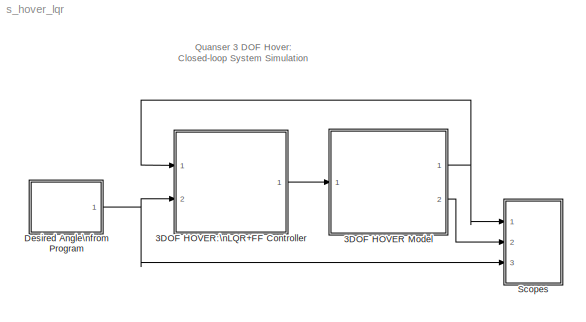
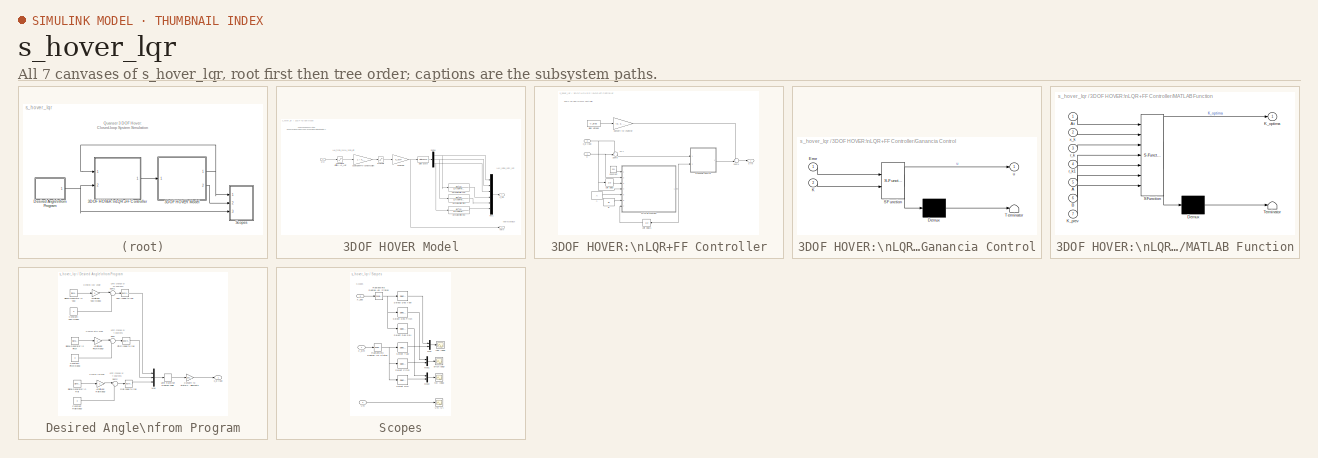
[diagram: thumbnail index - all 7 canvases of the model, root first then tree order]
MODEL s_hover_lqr
KIND model
BLOCK [SubSystem] 3DOF HOVER Model
  FunctionWithSeparateData = off
  MaskHideContents = off
  MinAlgLoopOccurrences = off
  Opaque = off
  Ports = [1, 2]
  PropExecContextOutsideSubsystem = off
  RTWSystemCode = Auto
  RequestExecContextInheritance = off
  SID = 1
BLOCK [Gain] 3DOF HOVER Model/Cable Gain
  Gain = K_AMP
  Multiplication = Matrix(K*u)
  SID = 3
BLOCK [Gain] 3DOF HOVER Model/Cable Gain\nPre-Compensation
  Gain = 1 / K_AMP
  Multiplication = Matrix(K*u)
  SID = 4
BLOCK [Saturate] 3DOF HOVER Model/DACB Limit
  InputPortMap = u0
  LowerLimit = -VMAX_DAC
  Ports = [1, 1]
  SID = 5
  UpperLimit = VMAX_DAC
BLOCK [Demux] 3DOF HOVER Model/Demux
  DisplayOption = bar
  Outputs = 3
  Ports = [1, 3]
  SID = 6
BLOCK [TransferFcn] 3DOF HOVER Model/Derivative Filter: Pitch
  Denominator = [1 2*zetaf*wcf wcf^2]
  Numerator = [wcf^2 0]
  SID = 7
BLOCK [TransferFcn] 3DOF HOVER Model/Derivative Filter: Roll
  Denominator = [1 2*zetaf*wcf wcf^2]
  Numerator = [wcf^2 0]
  SID = 8
BLOCK [TransferFcn] 3DOF HOVER Model/Derivative Filter: Yaw
  Denominator = [1 2*zetaf*wcf wcf^2]
  Numerator = [wcf^2 0]
  SID = 9
BLOCK [Mux] 3DOF HOVER Model/Mux1
  DisplayOption = bar
  Inputs = 6
  Ports = [6, 1]
  SID = 10
BLOCK [StateSpace] 3DOF HOVER Model/State-Space
  A = A
  B = B
  C = C
  D = D
  SID = 11
BLOCK [Saturate] 3DOF HOVER Model/UPM Voltage Limit:\n0 to VMAX_AMP
  InputPortMap = u0
  LowerLimit = 0
  Ports = [1, 1]
  SID = 12
  UpperLimit = VMAX_AMP
BLOCK [Outport] 3DOF HOVER Model/Vm (V)
  IconDisplay = Port number
  Port = 2
  SID = 14
BLOCK [Outport] 3DOF HOVER Model/X_sim
  IconDisplay = Port number
  SID = 13
BLOCK [Inport] 3DOF HOVER Model/u (V)
  IconDisplay = Port number
  SID = 2
BLOCK [SubSystem] 3DOF HOVER:\nLQR+FF Controller
  FunctionWithSeparateData = off
  MaskHideContents = off
  MinAlgLoopOccurrences = off
  Opaque = off
  Ports = [2, 1]
  PropExecContextOutsideSubsystem = off
  RTWSystemCode = Auto
  RequestExecContextInheritance = off
  SID = 19
BLOCK [Constant] 3DOF HOVER:\nLQR+FF Controller/A
  SID = 82
  Value = A
BLOCK [Constant] 3DOF HOVER:\nLQR+FF Controller/B
  SID = 83
  Value = B
BLOCK [Constant] 3DOF HOVER:\nLQR+FF Controller/Bias Voltage
  SID = 22
  Value = V_bias
BLOCK [Constant] 3DOF HOVER:\nLQR+FF Controller/Constant
  SID = 86
  Value = 0.01
BLOCK [Gain] 3DOF HOVER:\nLQR+FF Controller/Convert to \nVector
  Gain = [1; 1; 1; 1]
  Multiplication = Matrix(K*u)
  OutDataTypeStr = Inherit: Inherit via internal rule
  ParamDataTypeStr = Inherit: Inherit via internal rule
  SID = 24
  SaturateOnIntegerOverflow = off
BLOCK [SubSystem] 3DOF HOVER:\nLQR+FF Controller/Ganancia Control
  ErrorFcn = Stateflow.Translate.translate
  FunctionWithSeparateData = off
  MaskHideContents = off
  MinAlgLoopOccurrences = off
  Opaque = off
  PermitHierarchicalResolution = ExplicitOnly
  Ports = [2, 1]
  PropExecContextOutsideSubsystem = off
  RTWSystemCode = Auto
  RequestExecContextInheritance = off
  SFBlockType = MATLAB Function
  SID = 87
  TreatAsAtomicUnit = on
BLOCK [Demux] 3DOF HOVER:\nLQR+FF Controller/Ganancia Control/ Demux 
  Outputs = 1
  Ports = [1, 1]
  SID = 87::20
BLOCK [S-Function] 3DOF HOVER:\nLQR+FF Controller/Ganancia Control/ SFunction 
  EnableBusSupport = on
  FunctionName = sf_sfun
  PortCounts = [2 2]
  Ports = [2, 2]
  SID = 87::19
  Tag = Stateflow S-Function s_hover_lqr 1
BLOCK [Terminator] 3DOF HOVER:\nLQR+FF Controller/Ganancia Control/ Terminator 
  SID = 87::22
BLOCK [Inport] 3DOF HOVER:\nLQR+FF Controller/Ganancia Control/Error
  IconDisplay = Port number
  SID = 87::23
BLOCK [Inport] 3DOF HOVER:\nLQR+FF Controller/Ganancia Control/K
  IconDisplay = Port number
  Port = 2
  SID = 87::24
BLOCK [Outport] 3DOF HOVER:\nLQR+FF Controller/Ganancia Control/u
  IconDisplay = Port number
  SID = 87::25
BLOCK [SubSystem] 3DOF HOVER:\nLQR+FF Controller/MATLAB Function
  ErrorFcn = Stateflow.Translate.translate
  FunctionWithSeparateData = off
  MaskHideContents = off
  MinAlgLoopOccurrences = off
  Opaque = off
  PermitHierarchicalResolution = ExplicitOnly
  Ports = [7, 1]
  PropExecContextOutsideSubsystem = off
  RTWSystemCode = Auto
  RequestExecContextInheritance = off
  SFBlockType = MATLAB Function
  SID = 79
  TreatAsAtomicUnit = on
BLOCK [Demux] 3DOF HOVER:\nLQR+FF Controller/MATLAB Function/ Demux 
  Outputs = 1
  Ports = [1, 1]
  SID = 79::20
BLOCK [S-Function] 3DOF HOVER:\nLQR+FF Controller/MATLAB Function/ SFunction 
  EnableBusSupport = on
  FunctionName = sf_sfun
  PortCounts = [7 2]
  Ports = [7, 2]
  SID = 79::19
  Tag = Stateflow S-Function s_hover_lqr 2
BLOCK [Terminator] 3DOF HOVER:\nLQR+FF Controller/MATLAB Function/ Terminator 
  SID = 79::22
BLOCK [Inport] 3DOF HOVER:\nLQR+FF Controller/MATLAB Function/A
  IconDisplay = Port number
  Port = 5
  SID = 79::26
BLOCK [Inport] 3DOF HOVER:\nLQR+FF Controller/MATLAB Function/At
  IconDisplay = Port number
  SID = 79::1
BLOCK [Inport] 3DOF HOVER:\nLQR+FF Controller/MATLAB Function/B
  IconDisplay = Port number
  Port = 6
  SID = 79::27
BLOCK [Outport] 3DOF HOVER:\nLQR+FF Controller/MATLAB Function/K_optima
  IconDisplay = Port number
  SID = 79::31
BLOCK [Inport] 3DOF HOVER:\nLQR+FF Controller/MATLAB Function/K_prev
  IconDisplay = Port number
  Port = 7
  SID = 79::29
BLOCK [Inport] 3DOF HOVER:\nLQR+FF Controller/MATLAB Function/r_k
  IconDisplay = Port number
  Port = 3
  SID = 79::24
BLOCK [Inport] 3DOF HOVER:\nLQR+FF Controller/MATLAB Function/r_k1
  IconDisplay = Port number
  Port = 4
  SID = 79::25
BLOCK [Inport] 3DOF HOVER:\nLQR+FF Controller/MATLAB Function/x_k
  IconDisplay = Port number
  Port = 2
  SID = 79::23
BLOCK [Sum] 3DOF HOVER:\nLQR+FF Controller/Sum4
  IconShape = round
  InputSameDT = off
  Inputs = ++|
  OutDataTypeStr = Inherit: Inherit via internal rule
  Ports = [2, 1]
  SID = 25
  SaturateOnIntegerOverflow = off
BLOCK [Sum] 3DOF HOVER:\nLQR+FF Controller/Sum5
  IconShape = round
  InputSameDT = off
  Inputs = +-|
  OutDataTypeStr = Inherit: Inherit via internal rule
  Ports = [2, 1]
  SID = 26
  SaturateOnIntegerOverflow = off
BLOCK [UnitDelay] 3DOF HOVER:\nLQR+FF Controller/Unit Delay
  InitialCondition = [0;0;0;0;0;0]
  InputProcessing = Elements as channels (sample based)
  SID = 81
  SampleTime = -1
BLOCK [UnitDelay] 3DOF HOVER:\nLQR+FF Controller/Unit Delay1
  InitialCondition = K
  InputProcessing = Elements as channels (sample based)
  SID = 84
  SampleTime = -1
BLOCK [Inport] 3DOF HOVER:\nLQR+FF Controller/X
  IconDisplay = Port number
  SID = 20
BLOCK [Inport] 3DOF HOVER:\nLQR+FF Controller/X_d (rad)
  IconDisplay = Port number
  Port = 2
  SID = 21
BLOCK [Outport] 3DOF HOVER:\nLQR+FF Controller/u (V)
  IconDisplay = Port number
  SID = 27
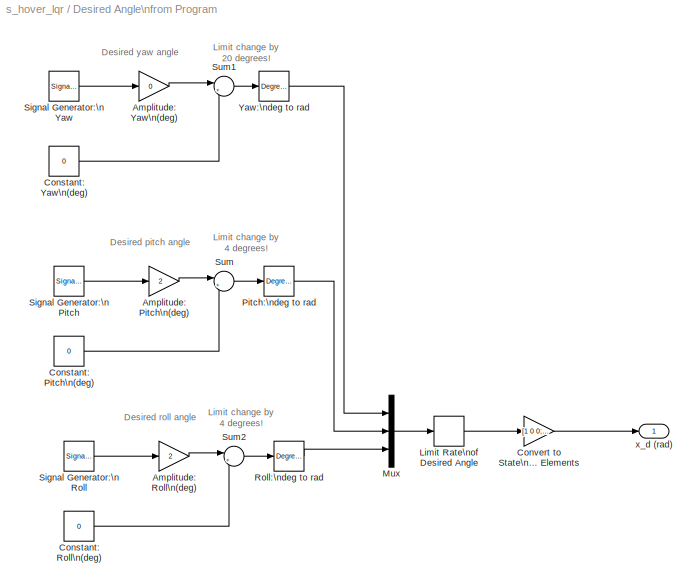
BLOCK [SubSystem] Desired Angle\nfrom Program
  FunctionWithSeparateData = off
  MaskHideContents = off
  MinAlgLoopOccurrences = off
  Opaque = off
  Ports = [0, 1]
  PropExecContextOutsideSubsystem = off
  RTWSystemCode = Auto
  RequestExecContextInheritance = off
  SID = 30
BLOCK [Gain] Desired Angle\nfrom Program/Amplitude: Pitch\n(deg)
  Gain = 2
  OutDataTypeStr = Inherit: Inherit via internal rule
  ParamDataTypeStr = Inherit: Inherit via internal rule
  SID = 31
  SaturateOnIntegerOverflow = off
BLOCK [Gain] Desired Angle\nfrom Program/Amplitude: Roll\n(deg)
  Gain = 2
  OutDataTypeStr = Inherit: Inherit via internal rule
  ParamDataTypeStr = Inherit: Inherit via internal rule
  SID = 32
  SaturateOnIntegerOverflow = off
BLOCK [Gain] Desired Angle\nfrom Program/Amplitude: Yaw\n(deg)
  Gain = 0
  OutDataTypeStr = Inherit: Inherit via internal rule
  ParamDataTypeStr = Inherit: Inherit via internal rule
  SID = 33
  SaturateOnIntegerOverflow = off
BLOCK [Constant] Desired Angle\nfrom Program/Constant: Pitch\n(deg)
  SID = 34
  Value = 0
BLOCK [Constant] Desired Angle\nfrom Program/Constant: Roll\n(deg)
  SID = 35
  Value = 0
BLOCK [Constant] Desired Angle\nfrom Program/Constant: Yaw\n(deg)
  SID = 36
  Value = 0
BLOCK [Gain] Desired Angle\nfrom Program/Convert to State\nwith 6 Elements
  Gain = [1 0 0; 0 1 0; 0 0 1; 0 0 0; 0 0 0; 0 0 0];
  Multiplication = Matrix(K*u)
  OutDataTypeStr = Inherit: Inherit via internal rule
  ParamDataTypeStr = Inherit: Inherit via internal rule
  SID = 37
  SaturateOnIntegerOverflow = off
BLOCK [RateLimiter] Desired Angle\nfrom Program/Limit Rate\nof Desired Angle
  FallingSlewLimit = -CMD_RATE_LIMIT
  RisingSlewLimit = CMD_RATE_LIMIT
  SID = 38
BLOCK [Mux] Desired Angle\nfrom Program/Mux
  DisplayOption = bar
  Inputs = 3
  Ports = [3, 1]
  SID = 39
BLOCK [Reference] Desired Angle\nfrom Program/Pitch:\ndeg to rad  REF=simulink_extras/Transformations/Degrees to\nRadians
  Ports = [1, 1]
  SID = 40
  SourceBlock = simulink_extras/Transformations/Degrees to\nRadians
  SourceType = DegreesToRadians
BLOCK [Reference] Desired Angle\nfrom Program/Roll:\ndeg to rad  REF=simulink_extras/Transformations/Degrees to\nRadians
  Ports = [1, 1]
  SID = 41
  SourceBlock = simulink_extras/Transformations/Degrees to\nRadians
  SourceType = DegreesToRadians
BLOCK [SignalGenerator] Desired Angle\nfrom Program/Signal Generator:\nPitch
  Frequency = 0.1
  Ports = [0, 1]
  SID = 42
  WaveForm = square
BLOCK [SignalGenerator] Desired Angle\nfrom Program/Signal Generator:\nRoll
  Frequency = 0.08
  Ports = [0, 1]
  SID = 43
  WaveForm = square
BLOCK [SignalGenerator] Desired Angle\nfrom Program/Signal Generator:\nYaw
  Frequency = 0.04
  Ports = [0, 1]
  SID = 44
  WaveForm = square
BLOCK [Sum] Desired Angle\nfrom Program/Sum
  IconShape = round
  InputSameDT = off
  Inputs = |++
  OutDataTypeStr = Inherit: Inherit via internal rule
  Ports = [2, 1]
  SID = 45
  SaturateOnIntegerOverflow = off
BLOCK [Sum] Desired Angle\nfrom Program/Sum1
  IconShape = round
  InputSameDT = off
  Inputs = |++
  OutDataTypeStr = Inherit: Inherit via internal rule
  Ports = [2, 1]
  SID = 46
  SaturateOnIntegerOverflow = off
BLOCK [Sum] Desired Angle\nfrom Program/Sum2
  IconShape = round
  InputSameDT = off
  Inputs = |++
  OutDataTypeStr = Inherit: Inherit via internal rule
  Ports = [2, 1]
  SID = 47
  SaturateOnIntegerOverflow = off
BLOCK [Reference] Desired Angle\nfrom Program/Yaw:\ndeg to rad  REF=simulink_extras/Transformations/Degrees to\nRadians
  Ports = [1, 1]
  SID = 48
  SourceBlock = simulink_extras/Transformations/Degrees to\nRadians
  SourceType = DegreesToRadians
BLOCK [Outport] Desired Angle\nfrom Program/x_d (rad)
  IconDisplay = Port number
  SID = 49
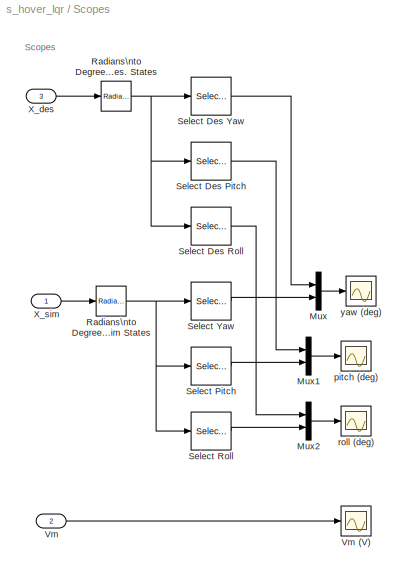
BLOCK [SubSystem] Scopes
  FunctionWithSeparateData = off
  MaskHideContents = off
  MinAlgLoopOccurrences = off
  Opaque = off
  Ports = [3]
  PropExecContextOutsideSubsystem = off
  RTWSystemCode = Auto
  RequestExecContextInheritance = off
  SID = 56
BLOCK [Mux] Scopes/Mux
  DisplayOption = bar
  Inputs = 2
  Ports = [2, 1]
  SID = 60
BLOCK [Mux] Scopes/Mux1
  DisplayOption = bar
  Inputs = 2
  Ports = [2, 1]
  SID = 61
BLOCK [Mux] Scopes/Mux2
  DisplayOption = bar
  Inputs = 2
  Ports = [2, 1]
  SID = 62
BLOCK [Reference] Scopes/Radians\nto Degrees -\nDes. States  REF=simulink_extras/Transformations/Radians\nto Degrees
  Ports = [1, 1]
  SID = 63
  SourceBlock = simulink_extras/Transformations/Radians\nto Degrees
  SourceType = RadiansToDegrees
BLOCK [Reference] Scopes/Radians\nto Degrees -\nSim States  REF=simulink_extras/Transformations/Radians\nto Degrees
  Ports = [1, 1]
  SID = 64
  SourceBlock = simulink_extras/Transformations/Radians\nto Degrees
  SourceType = RadiansToDegrees
BLOCK [Selector] Scopes/Select Des Pitch
  IndexOptions = Index vector (dialog)
  Indices = 2
  InputPortWidth = 6
  OutputSizes = 1
  Ports = [1, 1]
  SID = 65
BLOCK [Selector] Scopes/Select Des Roll
  IndexOptions = Index vector (dialog)
  Indices = 3
  InputPortWidth = 6
  OutputSizes = 1
  Ports = [1, 1]
  SID = 66
BLOCK [Selector] Scopes/Select Des Yaw
  IndexOptions = Index vector (dialog)
  Indices = 1
  InputPortWidth = 6
  OutputSizes = 1
  Ports = [1, 1]
  SID = 67
BLOCK [Selector] Scopes/Select Pitch
  IndexOptions = Index vector (dialog)
  Indices = 2
  InputPortWidth = 6
  OutputSizes = 1
  Ports = [1, 1]
  SID = 68
BLOCK [Selector] Scopes/Select Roll
  IndexOptions = Index vector (dialog)
  Indices = 3
  InputPortWidth = 6
  OutputSizes = 1
  Ports = [1, 1]
  SID = 69
BLOCK [Selector] Scopes/Select Yaw
  IndexOptions = Index vector (dialog)
  Indices = 1
  InputPortWidth = 6
  OutputSizes = 1
  Ports = [1, 1]
  SID = 70
BLOCK [Inport] Scopes/Vm
  IconDisplay = Port number
  Port = 2
  SID = 58
BLOCK [Scope] Scopes/Vm (V)
  Floating = off
  LimitDataPoints = off
  NumInputPorts = 1
  Ports = [1]
  SID = 71
  SampleTime = 0
  SaveName = ScopeData4
  ShowLegends = off
  TickLabels = on
  TimeRange = 20
  YMax = 15
  YMin = -15
BLOCK [Inport] Scopes/X_des
  IconDisplay = Port number
  Port = 3
  SID = 59
BLOCK [Inport] Scopes/X_sim
  IconDisplay = Port number
  SID = 57
BLOCK [Scope] Scopes/pitch (deg)
  Floating = off
  LimitDataPoints = off
  NumInputPorts = 1
  Ports = [1]
  SID = 72
  SampleTime = 0
  SaveName = ScopeData1
  ShowLegends = off
  TickLabels = on
  TimeRange = 20
  YMax = 2.5
  YMin = -2.5
BLOCK [Scope] Scopes/roll  (deg)
  Floating = off
  LimitDataPoints = off
  NumInputPorts = 1
  Ports = [1]
  SID = 73
  SampleTime = 0
  SaveName = ScopeData2
  ShowLegends = off
  TickLabels = on
  TimeRange = 20
BLOCK [Scope] Scopes/yaw (deg)
  Floating = off
  LimitDataPoints = off
  NumInputPorts = 1
  Ports = [1]
  SID = 74
  SampleTime = 0
  ShowLegends = off
  TickLabels = on
  TimeRange = 20
  YMax = 15
  YMin = -15
ANNOTATION (root): Quanser 3 DOF Hover:\nClosed-loop System Simulation
ANNOTATION 3DOF HOVER Model: 3DOF HOVER Subsystem\nReads angles from encoder and applied voltage to motors.
ANNOTATION 3DOF HOVER Model: Motor Input Voltage
ANNOTATION 3DOF HOVER Model: u = [u_front, u_back, u_right, u_left]
ANNOTATION 3DOF HOVER Model: x = [y, y_dot, p, p_dot, r, r_dot]
ANNOTATION 3DOF HOVER:\nLQR+FF Controller: 3DOF HOVER LQR+FF Controller
ANNOTATION 3DOF HOVER:\nLQR+FF Controller: Xd-X
ANNOTATION Desired Angle\nfrom Program: Desired pitch angle
ANNOTATION Desired Angle\nfrom Program: Desired roll angle
ANNOTATION Desired Angle\nfrom Program: Desired yaw angle
ANNOTATION Desired Angle\nfrom Program: Limit change by \n20 degrees!
ANNOTATION Desired Angle\nfrom Program: Limit change by \n4 degrees!
ANNOTATION Scopes: Scopes
NET 3DOF HOVER Model/Cable Gain:1 -> 3DOF HOVER Model/State-Space:1, 3DOF HOVER Model/Vm (V):1
LINE 3DOF HOVER Model/Cable Gain\nPre-Compensation:1 -> 3DOF HOVER Model/DACB Limit:1
LINE 3DOF HOVER Model/DACB Limit:1 -> 3DOF HOVER Model/Cable Gain:1
NET 3DOF HOVER Model/Demux:1 -> 3DOF HOVER Model/Derivative Filter: Yaw:1, 3DOF HOVER Model/Mux1:1
NET 3DOF HOVER Model/Demux:2 -> 3DOF HOVER Model/Derivative Filter: Pitch:1, 3DOF HOVER Model/Mux1:2
NET 3DOF HOVER Model/Demux:3 -> 3DOF HOVER Model/Derivative Filter: Roll:1, 3DOF HOVER Model/Mux1:3
LINE 3DOF HOVER Model/Derivative Filter: Pitch:1 -> 3DOF HOVER Model/Mux1:5
LINE 3DOF HOVER Model/Derivative Filter: Roll:1 -> 3DOF HOVER Model/Mux1:6
LINE 3DOF HOVER Model/Derivative Filter: Yaw:1 -> 3DOF HOVER Model/Mux1:4
LINE 3DOF HOVER Model/Mux1:1 -> 3DOF HOVER Model/X_sim:1
LINE 3DOF HOVER Model/State-Space:1 -> 3DOF HOVER Model/Demux:1
LINE 3DOF HOVER Model/UPM Voltage Limit:\n0 to VMAX_AMP:1 -> 3DOF HOVER Model/Cable Gain\nPre-Compensation:1
LINE 3DOF HOVER Model/u (V):1 -> 3DOF HOVER Model/UPM Voltage Limit:\n0 to VMAX_AMP:1
NET 3DOF HOVER Model:1 -> 3DOF HOVER:\nLQR+FF Controller:1, Scopes:1
LINE 3DOF HOVER Model:2 -> Scopes:2
LINE 3DOF HOVER:\nLQR+FF Controller/A:1 -> 3DOF HOVER:\nLQR+FF Controller/MATLAB Function:5
LINE 3DOF HOVER:\nLQR+FF Controller/B:1 -> 3DOF HOVER:\nLQR+FF Controller/MATLAB Function:6
LINE 3DOF HOVER:\nLQR+FF Controller/Bias Voltage:1 -> 3DOF HOVER:\nLQR+FF Controller/Convert to \nVector:1
LINE 3DOF HOVER:\nLQR+FF Controller/Constant:1 -> 3DOF HOVER:\nLQR+FF Controller/MATLAB Function:1
LINE 3DOF HOVER:\nLQR+FF Controller/Convert to \nVector:1 -> 3DOF HOVER:\nLQR+FF Controller/Sum4:1
LINE 3DOF HOVER:\nLQR+FF Controller/Ganancia Control/ Demux :1 -> 3DOF HOVER:\nLQR+FF Controller/Ganancia Control/ Terminator :1
LINE 3DOF HOVER:\nLQR+FF Controller/Ganancia Control/ SFunction :1 -> 3DOF HOVER:\nLQR+FF Controller/Ganancia Control/ Demux :1
LINE 3DOF HOVER:\nLQR+FF Controller/Ganancia Control/ SFunction :2 -> 3DOF HOVER:\nLQR+FF Controller/Ganancia Control/u:1
LINE 3DOF HOVER:\nLQR+FF Controller/Ganancia Control/Error:1 -> 3DOF HOVER:\nLQR+FF Controller/Ganancia Control/ SFunction :1
LINE 3DOF HOVER:\nLQR+FF Controller/Ganancia Control/K:1 -> 3DOF HOVER:\nLQR+FF Controller/Ganancia Control/ SFunction :2
LINE 3DOF HOVER:\nLQR+FF Controller/Ganancia Control:1 -> 3DOF HOVER:\nLQR+FF Controller/Sum4:2
LINE 3DOF HOVER:\nLQR+FF Controller/MATLAB Function/ Demux :1 -> 3DOF HOVER:\nLQR+FF Controller/MATLAB Function/ Terminator :1
LINE 3DOF HOVER:\nLQR+FF Controller/MATLAB Function/ SFunction :1 -> 3DOF HOVER:\nLQR+FF Controller/MATLAB Function/ Demux :1
LINE 3DOF HOVER:\nLQR+FF Controller/MATLAB Function/ SFunction :2 -> 3DOF HOVER:\nLQR+FF Controller/MATLAB Function/K_optima:1
LINE 3DOF HOVER:\nLQR+FF Controller/MATLAB Function/A:1 -> 3DOF HOVER:\nLQR+FF Controller/MATLAB Function/ SFunction :5
LINE 3DOF HOVER:\nLQR+FF Controller/MATLAB Function/At:1 -> 3DOF HOVER:\nLQR+FF Controller/MATLAB Function/ SFunction :1
LINE 3DOF HOVER:\nLQR+FF Controller/MATLAB Function/B:1 -> 3DOF HOVER:\nLQR+FF Controller/MATLAB Function/ SFunction :6
LINE 3DOF HOVER:\nLQR+FF Controller/MATLAB Function/K_prev:1 -> 3DOF HOVER:\nLQR+FF Controller/MATLAB Function/ SFunction :7
LINE 3DOF HOVER:\nLQR+FF Controller/MATLAB Function/r_k1:1 -> 3DOF HOVER:\nLQR+FF Controller/MATLAB Function/ SFunction :4
LINE 3DOF HOVER:\nLQR+FF Controller/MATLAB Function/r_k:1 -> 3DOF HOVER:\nLQR+FF Controller/MATLAB Function/ SFunction :3
LINE 3DOF HOVER:\nLQR+FF Controller/MATLAB Function/x_k:1 -> 3DOF HOVER:\nLQR+FF Controller/MATLAB Function/ SFunction :2
NET 3DOF HOVER:\nLQR+FF Controller/MATLAB Function:1 -> 3DOF HOVER:\nLQR+FF Controller/Ganancia Control:2, 3DOF HOVER:\nLQR+FF Controller/Unit Delay1:1
LINE 3DOF HOVER:\nLQR+FF Controller/Sum4:1 -> 3DOF HOVER:\nLQR+FF Controller/u (V):1
LINE 3DOF HOVER:\nLQR+FF Controller/Sum5:1 -> 3DOF HOVER:\nLQR+FF Controller/Ganancia Control:1
LINE 3DOF HOVER:\nLQR+FF Controller/Unit Delay1:1 -> 3DOF HOVER:\nLQR+FF Controller/MATLAB Function:7
LINE 3DOF HOVER:\nLQR+FF Controller/Unit Delay:1 -> 3DOF HOVER:\nLQR+FF Controller/MATLAB Function:3
NET 3DOF HOVER:\nLQR+FF Controller/X:1 -> 3DOF HOVER:\nLQR+FF Controller/MATLAB Function:2, 3DOF HOVER:\nLQR+FF Controller/Sum5:2
NET 3DOF HOVER:\nLQR+FF Controller/X_d (rad):1 -> 3DOF HOVER:\nLQR+FF Controller/MATLAB Function:4, 3DOF HOVER:\nLQR+FF Controller/Sum5:1, 3DOF HOVER:\nLQR+FF Controller/Unit Delay:1
LINE 3DOF HOVER:\nLQR+FF Controller:1 -> 3DOF HOVER Model:1
LINE Desired Angle\nfrom Program/Amplitude: Pitch\n(deg):1 -> Desired Angle\nfrom Program/Sum:1
LINE Desired Angle\nfrom Program/Amplitude: Roll\n(deg):1 -> Desired Angle\nfrom Program/Sum2:1
LINE Desired Angle\nfrom Program/Amplitude: Yaw\n(deg):1 -> Desired Angle\nfrom Program/Sum1:1
LINE Desired Angle\nfrom Program/Constant: Pitch\n(deg):1 -> Desired Angle\nfrom Program/Sum:2
LINE Desired Angle\nfrom Program/Constant: Roll\n(deg):1 -> Desired Angle\nfrom Program/Sum2:2
LINE Desired Angle\nfrom Program/Constant: Yaw\n(deg):1 -> Desired Angle\nfrom Program/Sum1:2
LINE Desired Angle\nfrom Program/Convert to State\nwith 6 Elements:1 -> Desired Angle\nfrom Program/x_d (rad):1
LINE Desired Angle\nfrom Program/Limit Rate\nof Desired Angle:1 -> Desired Angle\nfrom Program/Convert to State\nwith 6 Elements:1
LINE Desired Angle\nfrom Program/Mux:1 -> Desired Angle\nfrom Program/Limit Rate\nof Desired Angle:1
LINE Desired Angle\nfrom Program/Pitch:\ndeg to rad:1 -> Desired Angle\nfrom Program/Mux:2
LINE Desired Angle\nfrom Program/Roll:\ndeg to rad:1 -> Desired Angle\nfrom Program/Mux:3
LINE Desired Angle\nfrom Program/Signal Generator:\nPitch:1 -> Desired Angle\nfrom Program/Amplitude: Pitch\n(deg):1
LINE Desired Angle\nfrom Program/Signal Generator:\nRoll:1 -> Desired Angle\nfrom Program/Amplitude: Roll\n(deg):1
LINE Desired Angle\nfrom Program/Signal Generator:\nYaw:1 -> Desired Angle\nfrom Program/Amplitude: Yaw\n(deg):1
LINE Desired Angle\nfrom Program/Sum1:1 -> Desired Angle\nfrom Program/Yaw:\ndeg to rad:1
LINE Desired Angle\nfrom Program/Sum2:1 -> Desired Angle\nfrom Program/Roll:\ndeg to rad:1
LINE Desired Angle\nfrom Program/Sum:1 -> Desired Angle\nfrom Program/Pitch:\ndeg to rad:1
LINE Desired Angle\nfrom Program/Yaw:\ndeg to rad:1 -> Desired Angle\nfrom Program/Mux:1
NET Desired Angle\nfrom Program:1 -> 3DOF HOVER:\nLQR+FF Controller:2, Scopes:3
LINE Scopes/Mux1:1 -> Scopes/pitch (deg):1
LINE Scopes/Mux2:1 -> Scopes/roll  (deg):1
LINE Scopes/Mux:1 -> Scopes/yaw (deg):1
NET Scopes/Radians\nto Degrees -\nDes. States:1 -> Scopes/Select Des Pitch:1, Scopes/Select Des Roll:1, Scopes/Select Des Yaw:1
NET Scopes/Radians\nto Degrees -\nSim States:1 -> Scopes/Select Pitch:1, Scopes/Select Roll:1, Scopes/Select Yaw:1
LINE Scopes/Select Des Pitch:1 -> Scopes/Mux1:1
LINE Scopes/Select Des Roll:1 -> Scopes/Mux2:1
LINE Scopes/Select Des Yaw:1 -> Scopes/Mux:1
LINE Scopes/Select Pitch:1 -> Scopes/Mux1:2
LINE Scopes/Select Roll:1 -> Scopes/Mux2:2
LINE Scopes/Select Yaw:1 -> Scopes/Mux:2
LINE Scopes/Vm:1 -> Scopes/Vm (V):1
LINE Scopes/X_des:1 -> Scopes/Radians\nto Degrees -\nDes. States:1
LINE Scopes/X_sim:1 -> Scopes/Radians\nto Degrees -\nSim States:1
note: NET lines group one-source signal fan-out (src -> all destinations, sorted); 1:1 wires keep LINE
CHART 3DOF HOVER:\nLQR+FF Controller/Ganancia Control states=1 transitions=1
  STATE_LABEL 'eML_blk_kernel()'
CHART 3DOF HOVER:\nLQR+FF Controller/MATLAB Function states=1 transitions=1
  STATE_LABEL 'eML_blk_kernel()'
